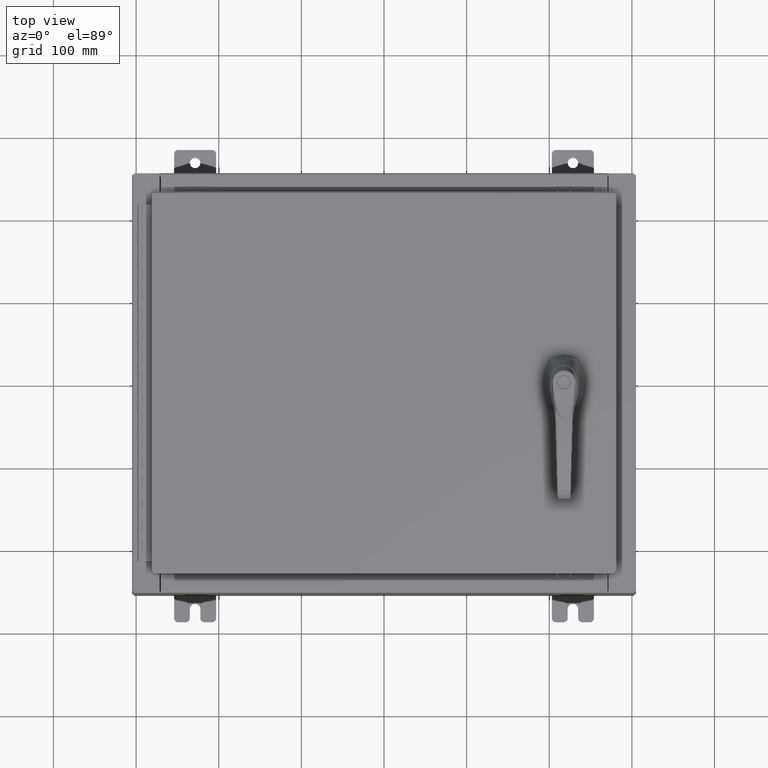
[diagram: clean part render]
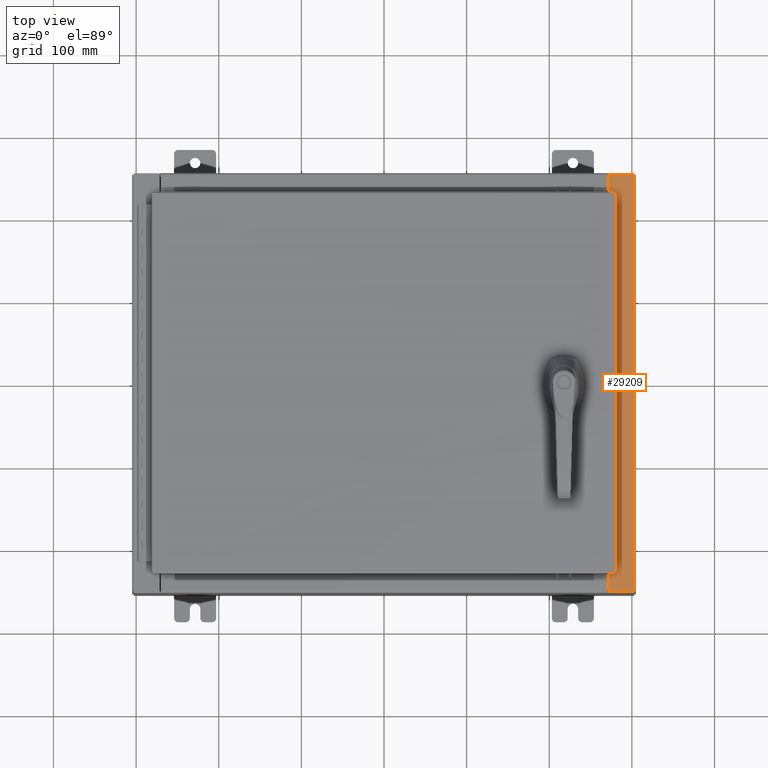
[diagram: same view with one face highlighted and labeled with its STEP entity id]
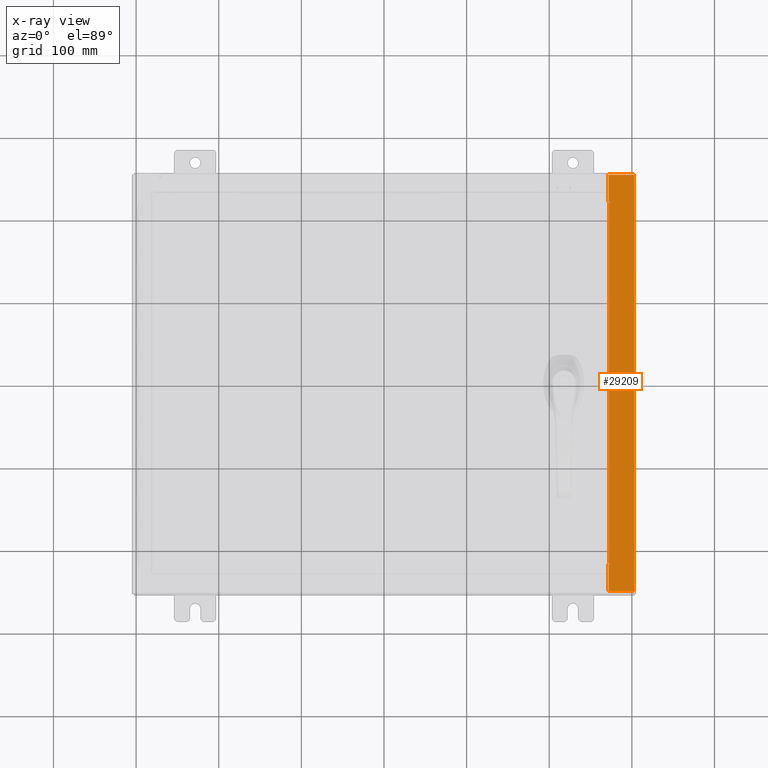
[diagram: x-ray of the same camera — body ghosted, the highlighted face saturated]
A machine part, top view. The second image highlights one B-rep face of the part: STEP entity #29209.
The next image is the same camera in x-ray: the body ghosted, the highlighted face saturated — about 0% of this face is hidden behind the body in this view.
In plain terms, the highlighted planar face has unit normal (-0, 0, -1).
Its self-contained STEP definition (entity closure, byte-faithful):
#267 = VECTOR ( 'NONE', #86051, 39.37007874015748100 ) ;
#869 = FACE_OUTER_BOUND ( 'NONE', #40450, .T. ) ;
#1543 = VECTOR ( 'NONE', #47545, 39.37007874015748100 ) ;
#3016 = VERTEX_POINT ( 'NONE', #100435 ) ;
#3256 = LINE ( 'NONE', #105397, #106049 ) ;
#4452 = DIRECTION ( 'NONE',  ( -1.000000000000000000, 0.0000000000000000000, 7.132762385546384700E-015 ) ) ;
#4935 = ORIENTED_EDGE ( 'NONE', *, *, #105738, .F. ) ;
#5907 = CARTESIAN_POINT ( 'NONE',  ( 10.69970000000002800, 1.177997802698536000E-015, 7.925300000000008900 ) ) ;
#6723 = VERTEX_POINT ( 'NONE', #41182 ) ;
#6988 = CARTESIAN_POINT ( 'NONE',  ( 5.679009539018295300E-014, -9.925300000000001800, 7.925300000000085300 ) ) ;
#7704 = CARTESIAN_POINT ( 'NONE',  ( 10.69970000000002800, -8.631100000000003500, 7.925300000000008900 ) ) ;
#8152 = VERTEX_POINT ( 'NONE', #53036 ) ;
#8534 = ORIENTED_EDGE ( 'NONE', *, *, #91995, .T. ) ;
#8701 = VERTEX_POINT ( 'NONE', #29187 ) ;
#8778 = CARTESIAN_POINT ( 'NONE',  ( 10.71270000000003000, 8.593749999999996400, 7.925300000000009800 ) ) ;
#10022 = CARTESIAN_POINT ( 'NONE',  ( 10.75005000000003000, 8.612424999999996400, 7.925300000000009800 ) ) ;
#10175 = VERTEX_POINT ( 'NONE', #22531 ) ;
#10658 = DIRECTION ( 'NONE',  ( -0.0000000000000000000, 1.000000000000000000, -0.0000000000000000000 ) ) ;
#10702 = VECTOR ( 'NONE', #10658, 39.37007874015748100 ) ;
#11399 = VECTOR ( 'NONE', #49576, 39.37007874015748100 ) ;
#13784 = LINE ( 'NONE', #5907, #76527 ) ;
#15009 = ORIENTED_EDGE ( 'NONE', *, *, #83916, .F. ) ;
#15573 = DIRECTION ( 'NONE',  ( 1.000000000000000000, 0.0000000000000000000, -7.132762385546384700E-015 ) ) ;
#17513 = CARTESIAN_POINT ( 'NONE',  ( 10.69970000000003000, -9.925300000000001800, 7.925300000000008900 ) ) ;
#18337 = DIRECTION ( 'NONE',  ( -1.000000000000000000, 0.0000000000000000000, 7.132762385546384700E-015 ) ) ;
#18579 = DIRECTION ( 'NONE',  ( 1.000000000000000000, 0.0000000000000000000, 0.0000000000000000000 ) ) ;
#20035 = EDGE_CURVE ( 'NONE', #60855, #83589, #36819, .T. ) ;
#21168 = EDGE_CURVE ( 'NONE', #8701, #79110, #13784, .T. ) ;
#22531 = CARTESIAN_POINT ( 'NONE',  ( 10.75005000000003000, -8.631100000000003500, 7.925300000000008900 ) ) ;
#24996 = EDGE_CURVE ( 'NONE', #3016, #66934, #78770, .T. ) ;
#25293 = DIRECTION ( 'NONE',  ( 7.132762385546384700E-015, 0.0000000000000000000, 1.000000000000000000 ) ) ;
#26040 = VECTOR ( 'NONE', #4452, 39.37007874015748100 ) ;
#26957 = DIRECTION ( 'NONE',  ( -0.0000000000000000000, -1.000000000000000000, -0.0000000000000000000 ) ) ;
#29187 = CARTESIAN_POINT ( 'NONE',  ( 10.69970000000002800, 9.925299999999992900, 7.925300000000008900 ) ) ;
#29209 = ADVANCED_FACE ( 'NONE', ( #869 ), #52295, .F. ) ;
#30254 = ORIENTED_EDGE ( 'NONE', *, *, #95577, .F. ) ;
#33172 = ORIENTED_EDGE ( 'NONE', *, *, #24996, .F. ) ;
#35275 = EDGE_CURVE ( 'NONE', #6723, #8701, #43343, .T. ) ;
#36819 = LINE ( 'NONE', #6988, #102325 ) ;
#37485 = VECTOR ( 'NONE', #26957, 39.37007874015748100 ) ;
#39292 = EDGE_CURVE ( 'NONE', #8152, #51654, #95001, .T. ) ;
#40450 = EDGE_LOOP ( 'NONE', ( #80579, #8534, #89769, #4935, #80450, #64684, #83876, #89124, #15009, #33172, #80390, #30254 ) ) ;
#41182 = CARTESIAN_POINT ( 'NONE',  ( 11.91230000000002700, 9.925299999999991100, 7.925300000000000000 ) ) ;
#43343 = LINE ( 'NONE', #55616, #26040 ) ;
#43486 = CARTESIAN_POINT ( 'NONE',  ( 10.75005000000003000, 8.631099999999996400, 7.925300000000009800 ) ) ;
#43526 = VERTEX_POINT ( 'NONE', #7704 ) ;
#47545 = DIRECTION ( 'NONE',  ( 1.100963394019027800E-016, -1.000000000000000000, -7.852910284722405000E-031 ) ) ;
#49576 = DIRECTION ( 'NONE',  ( 1.000000000000000000, 2.170286390199955400E-014, 2.170286390199955400E-014 ) ) ;
#51654 = VERTEX_POINT ( 'NONE', #68809 ) ;
#52295 = PLANE ( 'NONE',  #72266 ) ;
#53036 = CARTESIAN_POINT ( 'NONE',  ( 10.75005000000003000, 8.593749999999994700, 7.925300000000008900 ) ) ;
#55616 = CARTESIAN_POINT ( 'NONE',  ( 5.679009539018295300E-014, 9.925299999999996500, 7.925300000000085300 ) ) ;
#59945 = DIRECTION ( 'NONE',  ( 1.000000000000000000, 0.0000000000000000000, 0.0000000000000000000 ) ) ;
#59958 = CIRCLE ( 'NONE', #66551, 0.01867499999999949400 ) ;
#60121 = EDGE_CURVE ( 'NONE', #51654, #79110, #68356, .T. ) ;
#60855 = VERTEX_POINT ( 'NONE', #17513 ) ;
#60942 = CARTESIAN_POINT ( 'NONE',  ( 5.679009539018295300E-014, 0.0000000000000000000, 7.925300000000085300 ) ) ;
#61841 = CARTESIAN_POINT ( 'NONE',  ( 10.69970000000002800, 8.631099999999996400, 7.925300000000008900 ) ) ;
#64684 = ORIENTED_EDGE ( 'NONE', *, *, #21168, .T. ) ;
#66549 = VECTOR ( 'NONE', #59945, 39.37007874015748100 ) ;
#66551 = AXIS2_PLACEMENT_3D ( 'NONE', #76392, #25293, #84990 ) ;
#66934 = VERTEX_POINT ( 'NONE', #69059 ) ;
#68356 = LINE ( 'NONE', #43486, #267 ) ;
#68809 = CARTESIAN_POINT ( 'NONE',  ( 10.75005000000003000, 8.631099999999996400, 7.925300000000008900 ) ) ;
#69059 = CARTESIAN_POINT ( 'NONE',  ( 10.71270000000003000, 8.593749999999996400, 7.925300000000009800 ) ) ;
#69452 = DIRECTION ( 'NONE',  ( -7.132762385546384700E-015, 0.0000000000000000000, -1.000000000000000000 ) ) ;
#69697 = DIRECTION ( 'NONE',  ( 7.132762385546384700E-015, 0.0000000000000000000, 1.000000000000000000 ) ) ;
#70337 = CARTESIAN_POINT ( 'NONE',  ( 10.71270000000003000, -8.593750000000003600, 7.925300000000009800 ) ) ;
#71887 = LINE ( 'NONE', #8778, #66549 ) ;
#72266 = AXIS2_PLACEMENT_3D ( 'NONE', #60942, #69452, #18337 ) ;
#73601 = CARTESIAN_POINT ( 'NONE',  ( 10.75005000000003000, -8.593750000000003600, 7.925300000000008900 ) ) ;
#75299 = EDGE_CURVE ( 'NONE', #98882, #3016, #3256, .T. ) ;
#76392 = CARTESIAN_POINT ( 'NONE',  ( 10.75005000000003000, -8.612425000000001800, 7.925300000000009800 ) ) ;
#76527 = VECTOR ( 'NONE', #82726, 39.37007874015748100 ) ;
#76827 = LINE ( 'NONE', #109343, #11399 ) ;
#78770 = LINE ( 'NONE', #70337, #10702 ) ;
#79110 = VERTEX_POINT ( 'NONE', #61841 ) ;
#80390 = ORIENTED_EDGE ( 'NONE', *, *, #75299, .F. ) ;
#80450 = ORIENTED_EDGE ( 'NONE', *, *, #35275, .T. ) ;
#80579 = ORIENTED_EDGE ( 'NONE', *, *, #100602, .F. ) ;
#82274 = CARTESIAN_POINT ( 'NONE',  ( 11.91230000000002700, -9.925300000000001800, 7.925300000000000000 ) ) ;
#82726 = DIRECTION ( 'NONE',  ( 1.100963394019027800E-016, -1.000000000000000000, -7.852910284722405000E-031 ) ) ;
#82889 = LINE ( 'NONE', #95257, #37485 ) ;
#83589 = VERTEX_POINT ( 'NONE', #82274 ) ;
#83876 = ORIENTED_EDGE ( 'NONE', *, *, #60121, .F. ) ;
#83916 = EDGE_CURVE ( 'NONE', #66934, #8152, #71887, .T. ) ;
#84990 = DIRECTION ( 'NONE',  ( 1.000000000000000000, 0.0000000000000000000, 0.0000000000000000000 ) ) ;
#86051 = DIRECTION ( 'NONE',  ( -1.000000000000000000, 2.170286390199955400E-014, -2.170286390199955400E-014 ) ) ;
#88560 = DIRECTION ( 'NONE',  ( -1.000000000000000000, 0.0000000000000000000, 0.0000000000000000000 ) ) ;
#89124 = ORIENTED_EDGE ( 'NONE', *, *, #39292, .F. ) ;
#89769 = ORIENTED_EDGE ( 'NONE', *, *, #20035, .T. ) ;
#91995 = EDGE_CURVE ( 'NONE', #43526, #60855, #92329, .T. ) ;
#92329 = LINE ( 'NONE', #98699, #1543 ) ;
#95001 = CIRCLE ( 'NONE', #107792, 0.01867499999999949400 ) ;
#95257 = CARTESIAN_POINT ( 'NONE',  ( 11.91230000000002700, -9.925300000000001800, 7.925300000000000000 ) ) ;
#95577 = EDGE_CURVE ( 'NONE', #10175, #98882, #59958, .T. ) ;
#98699 = CARTESIAN_POINT ( 'NONE',  ( 10.69970000000002800, 1.177997802698536000E-015, 7.925300000000008900 ) ) ;
#98882 = VERTEX_POINT ( 'NONE', #73601 ) ;
#100435 = CARTESIAN_POINT ( 'NONE',  ( 10.71270000000003000, -8.593750000000003600, 7.925300000000009800 ) ) ;
#100602 = EDGE_CURVE ( 'NONE', #43526, #10175, #76827, .T. ) ;
#102325 = VECTOR ( 'NONE', #15573, 39.37007874015748100 ) ;
#105397 = CARTESIAN_POINT ( 'NONE',  ( 10.75005000000003000, -8.593750000000003600, 7.925300000000009800 ) ) ;
#105738 = EDGE_CURVE ( 'NONE', #6723, #83589, #82889, .T. ) ;
#106049 = VECTOR ( 'NONE', #88560, 39.37007874015748100 ) ;
#107792 = AXIS2_PLACEMENT_3D ( 'NONE', #10022, #69697, #18579 ) ;
#109343 = CARTESIAN_POINT ( 'NONE',  ( 10.69970000000002800, -8.631100000000003500, 7.925300000000008900 ) ) ;